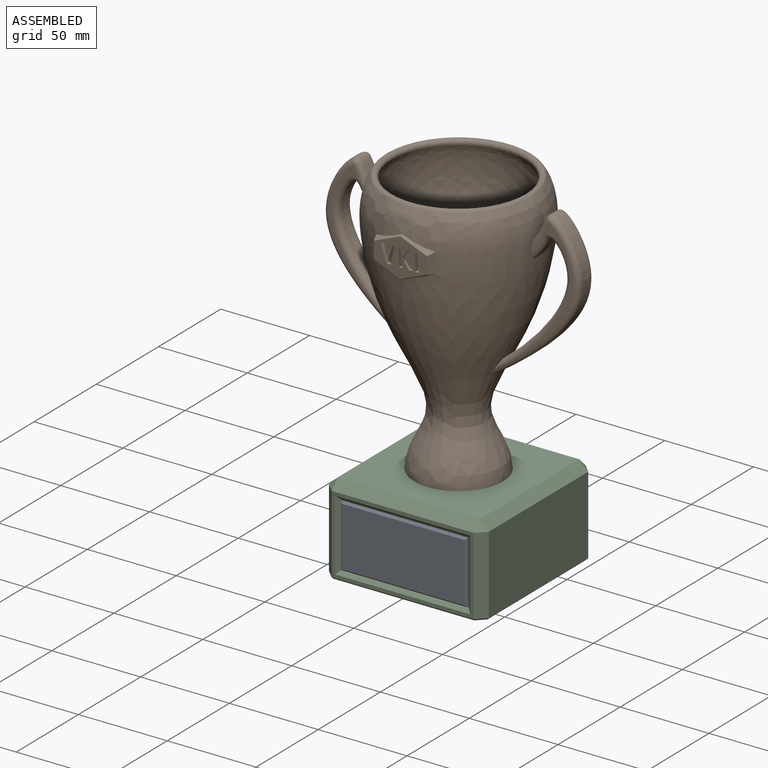
[diagram: assembled view]
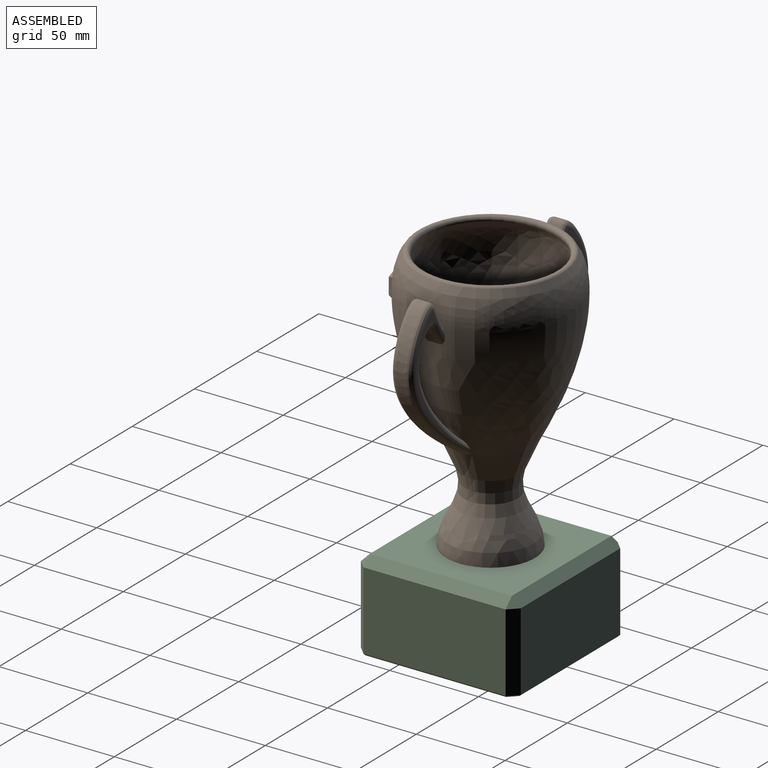
[diagram: assembled view, second angle]
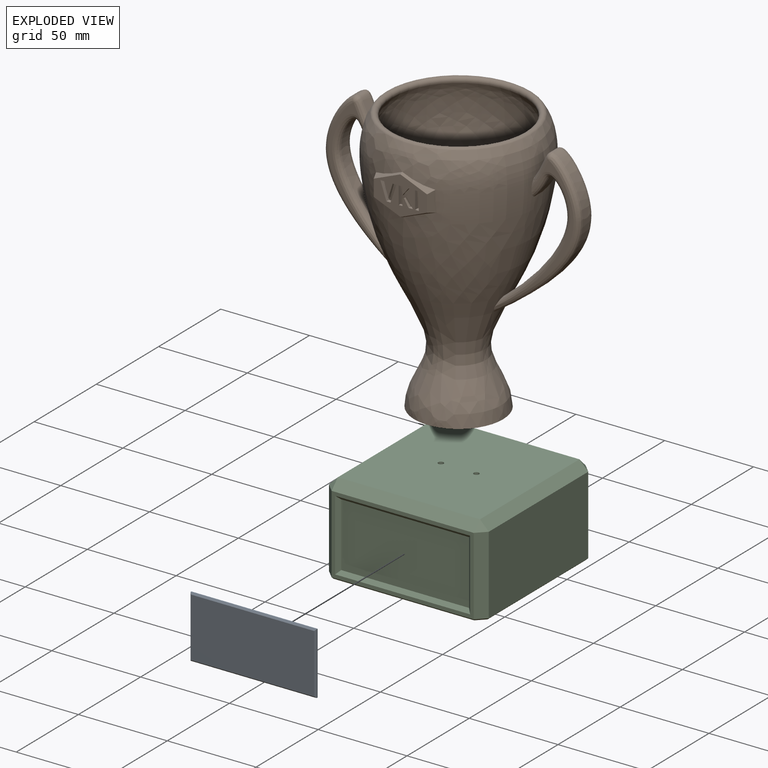
[diagram: exploded view]
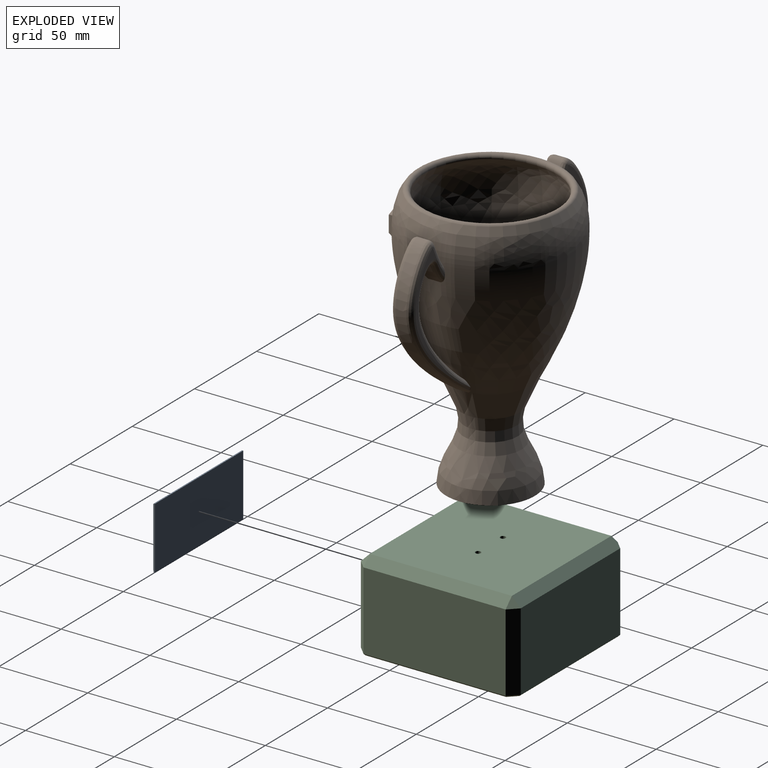
[diagram: exploded view, second angle]
ASSEMBLY  parts=3 mates=2
PART A: 10 faces, bbox 71x1.5x35 mm
  f0: plane 35x0.7mm, normal (1,0,0), area 24.5mm2, adj f1,f3,f4,f9
  f1: plane 71x0.7mm, normal (0,0,1), area 49.7mm2, adj f0,f2,f4,f7
  f2: plane 35x0.7mm, normal (-1,0,0), area 24.5mm2, adj f1,f3,f4,f6
  f3: plane 71x0.7mm, normal (0,0,-1), area 49.7mm2, adj f0,f2,f4,f8
  f4: plane 71x35mm, normal (0,1,0), area 2485mm2, adj f0,f1,f2,f3
  f5: plane 69.4x33.4mm, normal (0,-1,0), area 2318mm2, adj f6,f7,f8,f9
  f6: plane 35x0.8mm, normal (-0.71,-0.71,0), area 38.7mm2, adj f2,f5,f7,f8
  f7: plane 71x0.8mm, normal (0,-0.71,0.71), area 79.4mm2, adj f1,f5,f6,f9
  f8: plane 71x0.8mm, normal (0,-0.71,-0.71), area 79.4mm2, adj f3,f5,f6,f9
  f9: plane 35x0.8mm, normal (0.71,-0.71,0), area 38.7mm2, adj f0,f5,f7,f8
PART B: 72 faces, bbox 144.3x92.7x150.3 mm
  f0: plane 50x50mm, normal (0,0,-1), area 1949.4mm2, adj f6,f33,f34
  f1: plane 41.21x41.21mm, normal (0,0,1), area 1319.5mm2, adj f7,f33,f34
  f2: plane 68.56x26.83mm, normal (0,-1,0), area 157mm2, adj f29,f30,f32
  f3: plane 5.33x3.46mm, normal (0,1,0), area 1.6mm2, adj f6,f26,f28
  f4: plane 68.55x26.82mm, normal (0,-1,0), area 156.9mm2, adj f22,f23,f24
  f5: plane 5.33x3.46mm, normal (0,1,0), area 1.6mm2, adj f6,f18,f20
  f6: revolved ~149.22x91.39mm, area 30287.3mm2, adj f0,f3,f5,f8,f9,f10,f11,f13
  f7: revolved ~142.78x83.45mm, area 26006.8mm2, adj f1,f8
  f8: torus R=39.06mm, axis (0,0,1), area 1511.3mm2, adj f6,f7
  f9: extruded ~68.05x36.09mm, area 604.6mm2, adj f6,f20,f24
  f10: extruded ~89.3x48.91mm, area 799.1mm2, adj f6,f17,f18,f19,f21,f22,f23
  f11: plane 5.33x3.46mm, normal (0,-1,0), area 1.6mm2, adj f6,f22,f24
  f12: plane 68.56x26.83mm, normal (0,1,0), area 157mm2, adj f18,f19,f20
  f13: extruded ~68.05x36.09mm, area 606.1mm2, adj f6,f26,f30
  f14: extruded ~89.3x48.91mm, area 800.6mm2, adj f6,f25,f27,f28,f29,f31,f32
  f15: plane 5.33x3.46mm, normal (0,-1,0), area 1.6mm2, adj f6,f30,f32
  f16: plane 68.55x26.82mm, normal (0,1,0), area 157mm2, adj f25,f26,f28
  f17: bspline ~3.34x3.13mm, area 7.1mm2, adj f10,f18,f19
  f18: bspline ~18.48x12.13mm, area 80.2mm2, adj f5,f6,f10,f12,f17,f20
  f19: bspline ~89.66x51.39mm, area 513.6mm2, adj f6,f10,f12,f17,f20
  f20: bspline ~77.66x44.71mm, area 493.7mm2, adj f5,f6,f9,f12,f18,f19
  f21: bspline ~3.34x3.13mm, area 7.1mm2, adj f10,f22,f23
  f22: bspline ~18.48x12.13mm, area 80.2mm2, adj f4,f6,f10,f11,f21,f24
  f23: bspline ~89.66x51.39mm, area 513.6mm2, adj f4,f6,f10,f21,f24
  f24: bspline ~77.66x44.71mm, area 493.7mm2, adj f4,f6,f9,f11,f22,f23
  f25: bspline ~89.66x51.39mm, area 513.6mm2, adj f6,f14,f16,f26,f27
  f26: bspline ~77.66x44.71mm, area 493.7mm2, adj f3,f6,f13,f16,f25,f28
  f27: bspline ~3.34x3.13mm, area 7.1mm2, adj f14,f25,f28
  f28: bspline ~18.48x12.13mm, area 80.2mm2, adj f3,f6,f14,f16,f26,f27
  f29: bspline ~89.66x51.39mm, area 513.6mm2, adj f2,f6,f14,f30,f31
  f30: bspline ~77.66x44.71mm, area 493.7mm2, adj f2,f6,f13,f15,f29,f32
  f31: bspline ~3.34x3.13mm, area 7.1mm2, adj f14,f29,f32
  f32: bspline ~18.48x12.13mm, area 80.2mm2, adj f2,f6,f14,f15,f30,f31
  f33: cylinder r=1.5mm len=4mm, axis (0,0,-1), area 37.7mm2, adj f0,f1
  f34: cylinder r=1.5mm len=4mm, axis (0,0,-1), area 37.7mm2, adj f0,f1
  f35: plane 2.72x2.1mm, normal (0,0,1), area 5.2mm2, adj f36,f61,f62,f69
  f36: plane 9.92x2.28mm, normal (1,0,0), area 19.4mm2, adj f35,f37,f62,f69
  f37: plane 2.26x2.1mm, normal (0,0,-1), area 4.3mm2, adj f36,f61,f62,f69
  f38: plane 6x1.98mm, normal (0.95,0,-0.3), area 8.7mm2, adj f39,f59,f62,f71
  f39: plane 2.12x1.28mm, normal (0,0,-1), area 2.5mm2, adj f38,f40,f62,f71
  f40: plane 10.17x3.62mm, normal (-0.95,0,0.32), area 14.5mm2, adj f39,f41,f62,f71
  f41: plane 2.29x2.21mm, normal (0,0,1), area 4.7mm2, adj f40,f42,f62,f71
  f42: plane 10.14x3.59mm, normal (0.95,0,0.32), area 23.3mm2, adj f41,f43,f62,f71
  f43: plane 2.48x2.12mm, normal (0,0,-1), area 4.7mm2, adj f42,f44,f62,f71
  f44: plane 5.99x2.08mm, normal (-0.95,0,-0.3), area 11.4mm2, adj f43,f45,f62,f71
  f45: extruded ~1.81x1.22mm, area 2.3mm2, adj f44,f46,f62,f71
  f46: extruded ~1.86x0.97mm, area 1.8mm2, adj f45,f59,f62,f71
  f47: plane 2.1x1.09mm, normal (0,0,-1), area 2.3mm2, adj f48,f60,f62,f70
  f48: plane 4.59x1.21mm, normal (-1,0,0), area 5mm2, adj f47,f49,f62,f70
  f49: plane 1.17x1.15mm, normal (0.82,0,-0.58), area 1.6mm2, adj f48,f50,f62,f70
  f50: plane 3.4x2.72mm, normal (0.78,0,-0.62), area 5.2mm2, adj f49,f51,f62,f70
  f51: plane 2.33x1.61mm, normal (0,0,-1), area 3.4mm2, adj f50,f52,f62,f70
  f52: plane 4.44x3.51mm, normal (-0.79,0,0.62), area 7.8mm2, adj f51,f53,f62,f70
  f53: plane 5.61x3.57mm, normal (-0.85,0,-0.53), area 10.5mm2, adj f52,f54,f62,f70
  f54: plane 2.39x2.07mm, normal (0,0,1), area 4.5mm2, adj f53,f55,f62,f70
  f55: plane 4.22x2.64mm, normal (0.85,0,0.53), area 7.2mm2, adj f54,f56,f62,f70
  f56: plane 1.25x0.89mm, normal (-0.58,0,0.81), area 1.4mm2, adj f55,f57,f62,f70
  f57: plane 3.57x1.56mm, normal (-1,0,0), area 4.9mm2, adj f56,f58,f62,f70
  f58: plane 2.1x1.54mm, normal (0,0,1), area 3.2mm2, adj f57,f60,f62,f70
  f59: extruded ~2.18x1.86mm, area 3.9mm2, adj f38,f46,f62,f71
  f60: plane 10.16x1.77mm, normal (1,0,0), area 12mm2, adj f47,f58,f62,f70
  f61: plane 9.92x2.72mm, normal (-1,0,0), area 23.7mm2, adj f35,f37,f62,f69
  f62: plane 30x21.67mm, normal (0,-1,0), area 361.1mm2, adj f35,f36,f37,f38,f39,f40,f41,f42
  f63: plane 16.99x7.23mm, normal (0.35,-0.37,-0.86), area 54.7mm2, adj f6,f62,f64,f65
  f64: plane 11.79x4.94mm, normal (0.93,-0.37,0), area 50mm2, adj f6,f62,f63,f66
  f65: plane 16.99x7.23mm, normal (-0.35,-0.37,-0.86), area 54.7mm2, adj f6,f62,f63,f67
  f66: plane 16.71x6.85mm, normal (0.35,-0.37,0.86), area 40.4mm2, adj f6,f62,f64,f68
  f67: plane 11.79x4.94mm, normal (-0.93,-0.37,0), area 50mm2, adj f6,f62,f65,f68
  f68: plane 16.71x6.85mm, normal (-0.35,-0.37,0.86), area 40.4mm2, adj f6,f62,f66,f67
  f69: revolved ~9.92x2.29mm, area 21.3mm2, adj f35,f36,f37,f61
  f70: revolved ~9.92x8.06mm, area 45.4mm2, adj f47,f48,f49,f50,f51,f52,f53,f54
  f71: revolved ~9.92x9.05mm, area 38mm2, adj f38,f39,f40,f41,f42,f43,f44,f45
PART C: 57 faces, bbox 90x90x50 mm
  f0: plane 80x80mm, normal (0,0,1), area 6385.9mm2, adj f10,f11,f15,f16,f55,f56
  f1: plane 75.03x75.03mm, normal (0,0,-1), area 5615.3mm2, adj f33,f35,f41,f52,f55,f56
  f2: plane 88x88mm, normal (0,0,-1), area 2659.8mm2, adj f19,f20,f21,f22,f23,f24,f25,f26
  f3: plane 80x44mm, normal (0,-1,0), area 480mm2, adj f7,f9,f10,f23,f28,f29,f30,f31
  f4: plane 80x44mm, normal (1,0,0), area 3520mm2, adj f9,f15,f18,f19
  f5: plane 80x44mm, normal (0,1,0), area 3520mm2, adj f12,f16,f18,f22
  f6: plane 80x44mm, normal (-1,0,0), area 3520mm2, adj f7,f11,f12,f26
  f7: plane 44x5mm, normal (-0.71,-0.71,0), area 311.1mm2, adj f3,f6,f8,f25
  f8: plane 5x5mm, normal (-0.58,-0.58,0.58), area 21.7mm2, adj f7,f10,f11
  f9: plane 44x5mm, normal (0.71,-0.71,0), area 311.1mm2, adj f3,f4,f13,f21
  f10: plane 80x5mm, normal (0,-0.71,0.71), area 565.7mm2, adj f0,f3,f8,f13
  f11: plane 80x5mm, normal (-0.71,0,0.71), area 565.7mm2, adj f0,f6,f8,f14
  f12: plane 44x5mm, normal (-0.71,0.71,0), area 311.1mm2, adj f5,f6,f14,f24
  f13: plane 5x5mm, normal (0.58,-0.58,0.58), area 21.7mm2, adj f9,f10,f15
  f14: plane 5x5mm, normal (-0.58,0.58,0.58), area 21.7mm2, adj f11,f12,f16
  f15: plane 80x5mm, normal (0.71,0,0.71), area 565.7mm2, adj f0,f4,f13,f17
  f16: plane 80x5mm, normal (0,0.71,0.71), area 565.7mm2, adj f0,f5,f14,f17
  f17: plane 5x5mm, normal (0.58,0.58,0.58), area 21.7mm2, adj f15,f16,f18
  f18: plane 44x5mm, normal (0.71,0.71,0), area 311.1mm2, adj f4,f5,f17,f20
  f19: plane 80x1mm, normal (0.71,0,-0.71), area 112.6mm2, adj f2,f4,f20,f21
  f20: plane 5.41x5.41mm, normal (0.5,0.5,-0.71), area 9.4mm2, adj f2,f18,f19,f22
  f21: plane 5.41x5.41mm, normal (0.5,-0.5,-0.71), area 9.4mm2, adj f2,f9,f19,f23
  f22: plane 80x1mm, normal (0,0.71,-0.71), area 112.6mm2, adj f2,f5,f20,f24
  f23: plane 80x1mm, normal (0,-0.71,-0.71), area 112.6mm2, adj f2,f3,f21,f25
  f24: plane 5.41x5.41mm, normal (-0.5,0.5,-0.71), area 9.4mm2, adj f2,f12,f22,f26
  f25: plane 5.41x5.41mm, normal (-0.5,-0.5,-0.71), area 9.4mm2, adj f2,f7,f23,f26
  f26: plane 80x1mm, normal (-0.71,0,-0.71), area 112.6mm2, adj f2,f6,f24,f25
  f27: plane 72x36mm, normal (0,-1,0), area 2592mm2, adj f28,f29,f30,f31
  f28: plane 40x2mm, normal (0.71,-0.71,0), area 107.5mm2, adj f3,f27,f29,f30
  f29: plane 76x2mm, normal (0,-0.71,-0.71), area 209.3mm2, adj f3,f27,f28,f31
  f30: plane 76x2mm, normal (0,-0.71,0.71), area 209.3mm2, adj f3,f27,f28,f31
  f31: plane 40x2mm, normal (-0.71,-0.71,0), area 107.5mm2, adj f3,f27,f29,f30
  f32: plane 75.03x3.49mm, normal (-0.71,0,0.71), area 361.7mm2, adj f2,f34,f36,f44,f45,f46,f47,f53
  f33: plane 75.61x1.49mm, normal (-0.71,0,-0.71), area 157.6mm2, adj f1,f34,f36,f41,f42,f43,f52,f54
  f34: plane 76.97x40.97mm, normal (0,1,0), area 3153.1mm2, adj f32,f33,f35,f50,f51,f52,f53,f54
  f35: plane 75.61x1.49mm, normal (0.71,0,-0.71), area 157.6mm2, adj f1,f34,f38,f39,f40,f41,f51,f52
  f36: plane 75.03x39.03mm, normal (-1,0,0), area 2928.4mm2, adj f32,f33,f43,f54
  f37: plane 75.03x39.03mm, normal (0,-1,0), area 2928.4mm2, adj f39,f41,f43,f46
  f38: plane 75.03x39.03mm, normal (1,0,0), area 2928.4mm2, adj f35,f39,f50,f51
  f39: plane 39.61x1.49mm, normal (0.71,-0.71,0), area 82.7mm2, adj f35,f37,f38,f40,f41,f48
  f40: plane 0.33x0.33mm, normal (0.58,-0.58,-0.58), area 0.1mm2, adj f35,f39,f41
  f41: plane 76.19x1.49mm, normal (0,-0.71,-0.71), area 159.1mm2, adj f1,f33,f35,f37,f39,f40,f42,f43
  f42: plane 0.33x0.33mm, normal (-0.58,-0.58,-0.58), area 0.1mm2, adj f33,f41,f43
  f43: plane 39.61x1.49mm, normal (-0.71,-0.71,0), area 82.7mm2, adj f33,f36,f37,f41,f42,f44
  f44: plane 2.54x2.54mm, normal (-0.5,-0.5,0.71), area 3.8mm2, adj f32,f43,f46
  f45: plane 1.49x1.49mm, normal (-0.5,0.5,0.71), area 0.9mm2, adj f32,f47,f53
  f46: plane 75.03x3.49mm, normal (0,-0.71,0.71), area 362mm2, adj f2,f32,f37,f44,f48,f50
  f47: plane 73.8x2mm, normal (0,0.71,0.71), area 205.6mm2, adj f2,f32,f45,f49,f50,f53
  f48: plane 2.54x2.54mm, normal (0.5,-0.5,0.71), area 3.8mm2, adj f39,f46,f50
  f49: plane 1.49x1.49mm, normal (0.5,0.5,0.71), area 0.9mm2, adj f47,f50,f53
  f50: plane 75.03x3.49mm, normal (0.71,0,0.71), area 361.7mm2, adj f2,f34,f38,f46,f47,f48,f49,f51
  f51: plane 40.06x0.51mm, normal (-0.71,0.71,0), area 28.8mm2, adj f34,f35,f38,f50
  f52: plane 76.06x0.51mm, normal (0,0.71,0.71), area 55mm2, adj f1,f33,f34,f35
  f53: plane 76.06x0.51mm, normal (0,0.71,-0.71), area 54.6mm2, adj f32,f34,f45,f47,f49,f50
  f54: plane 40.06x0.51mm, normal (0.71,0.71,0), area 28.8mm2, adj f32,f33,f34,f36
  f55: cylinder r=1.5mm len=6mm, axis (0,0,-1), area 56.5mm2, adj f0,f1
  f56: cylinder r=1.5mm len=6mm, axis (0,0,-1), area 56.5mm2, adj f0,f1
PLACE A t=(5.88,-17.09,38.38)mm
PLACE B t=(5.88,25.91,65.38)mm
PLACE C t=(5.88,25.91,15.38)mm fixed
MATE fastened C.f0 <-> B.f8  axis (0,0,1) through (5.88,25.91,65.38)mm
MATE fastened A.f4 <-> C.f27  axis (0,1,0) through (5.88,-17.09,38.38)mm
